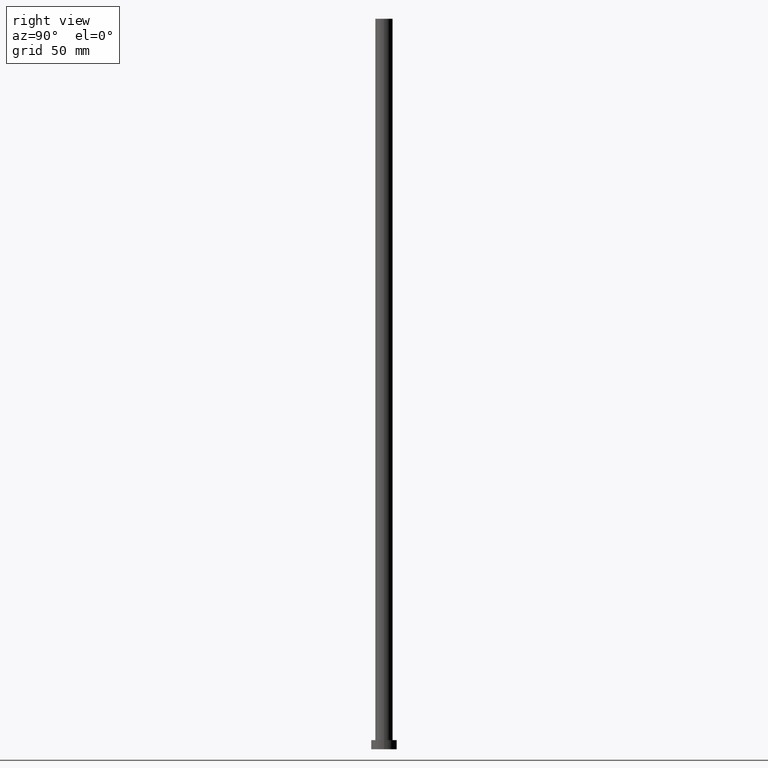
[diagram: clean part render]
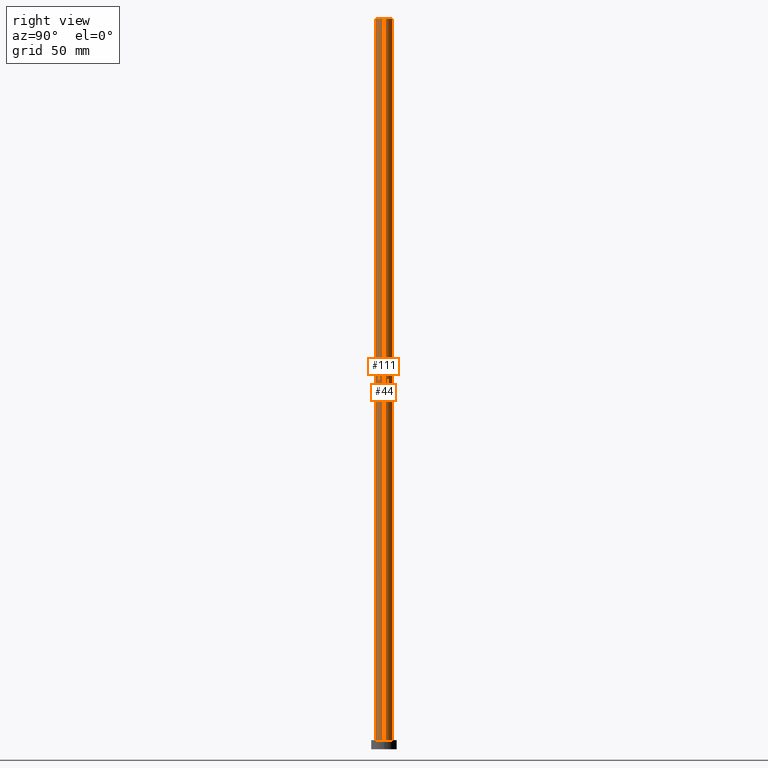
[diagram: same view with one multi-face feature highlighted, each face labeled with its STEP entity id]
A machine part, right view. The highlighted faces form ONE feature: a constant-radius fillet chain: 2 tangent blend faces with common blend radius 4.75 mm. The faces share edges in the B-rep.
Their STEP definitions:
[1] entity #111 (Cylinder):
#4 = AXIS2_PLACEMENT_3D ( 'NONE', #95, #174, #137 ) ;
#17 = DIRECTION ( 'NONE',  ( -0.000000000000000000, -0.000000000000000000, -1.000000000000000000 ) ) ;
#19 = DIRECTION ( 'NONE',  ( -1.000000000000000000, 0.000000000000000000, 0.000000000000000000 ) ) ;
#21 = DIRECTION ( 'NONE',  ( 0.000000000000000000, 0.000000000000000000, 1.000000000000000000 ) ) ;
#31 = AXIS2_PLACEMENT_3D ( 'NONE', #75, #175, #19 ) ;
#36 = VECTOR ( 'NONE', #195, 1000.000000000000000 ) ;
#38 = LINE ( 'NONE', #160, #36 ) ;
#40 = CARTESIAN_POINT ( 'NONE',  ( 0.000000000000000000, 0.000000000000000000, 5.000000000000000000 ) ) ;
#49 = VECTOR ( 'NONE', #17, 1000.000000000000000 ) ;
#57 = FACE_OUTER_BOUND ( 'NONE', #90, .T. ) ;
#62 = CARTESIAN_POINT ( 'NONE',  ( 4.750000000000000888, 5.817072295949927426E-16, 400.0000000000000000 ) ) ;
#64 = CARTESIAN_POINT ( 'NONE',  ( -4.750000000000000888, 0.000000000000000000, 5.000000000000000000 ) ) ;
#65 = ORIENTED_EDGE ( 'NONE', *, *, #167, .F. ) ;
#73 = CARTESIAN_POINT ( 'NONE',  ( 4.750000000000000888, 5.817072295949927426E-16, 5.000000000000000000 ) ) ;
#75 = CARTESIAN_POINT ( 'NONE',  ( 0.000000000000000000, 0.000000000000000000, 400.0000000000000000 ) ) ;
#80 = CIRCLE ( 'NONE', #4, 4.750000000000000888 ) ;
#83 = VERTEX_POINT ( 'NONE', #73 ) ;
#87 = ORIENTED_EDGE ( 'NONE', *, *, #209, .T. ) ;
#90 = EDGE_LOOP ( 'NONE', ( #182, #65, #87, #120 ) ) ;
#95 = CARTESIAN_POINT ( 'NONE',  ( 0.000000000000000000, 0.000000000000000000, 400.0000000000000000 ) ) ;
#102 = VERTEX_POINT ( 'NONE', #64 ) ;
#108 = VERTEX_POINT ( 'NONE', #62 ) ;
#111 = ADVANCED_FACE ( 'NONE', ( #57 ), #193, .T. ) ;
#118 = CARTESIAN_POINT ( 'NONE',  ( -4.750000000000000888, 0.000000000000000000, 400.0000000000000000 ) ) ;
#120 = ORIENTED_EDGE ( 'NONE', *, *, #126, .T. ) ;
#126 = EDGE_CURVE ( 'NONE', #102, #83, #138, .T. ) ;
#137 = DIRECTION ( 'NONE',  ( 1.000000000000000000, 0.000000000000000000, 0.000000000000000000 ) ) ;
#138 = CIRCLE ( 'NONE', #170, 4.750000000000000888 ) ;
#154 = DIRECTION ( 'NONE',  ( 1.000000000000000000, 0.000000000000000000, 0.000000000000000000 ) ) ;
#159 = EDGE_CURVE ( 'NONE', #108, #83, #176, .T. ) ;
#160 = CARTESIAN_POINT ( 'NONE',  ( -4.750000000000000888, 0.000000000000000000, 400.0000000000000000 ) ) ;
#167 = EDGE_CURVE ( 'NONE', #239, #108, #80, .T. ) ;
#170 = AXIS2_PLACEMENT_3D ( 'NONE', #40, #21, #154 ) ;
#174 = DIRECTION ( 'NONE',  ( 0.000000000000000000, 0.000000000000000000, 1.000000000000000000 ) ) ;
#175 = DIRECTION ( 'NONE',  ( -0.000000000000000000, -0.000000000000000000, -1.000000000000000000 ) ) ;
#176 = LINE ( 'NONE', #214, #49 ) ;
#182 = ORIENTED_EDGE ( 'NONE', *, *, #159, .F. ) ;
#193 = CYLINDRICAL_SURFACE ( 'NONE', #31, 4.750000000000000888 ) ;
#195 = DIRECTION ( 'NONE',  ( -0.000000000000000000, -0.000000000000000000, -1.000000000000000000 ) ) ;
#209 = EDGE_CURVE ( 'NONE', #239, #102, #38, .T. ) ;
#214 = CARTESIAN_POINT ( 'NONE',  ( 4.750000000000000888, 5.817072295949927426E-16, 400.0000000000000000 ) ) ;
#239 = VERTEX_POINT ( 'NONE', #118 ) ;
[2] entity #44 (Cylinder):
#15 = DIRECTION ( 'NONE',  ( 1.000000000000000000, 0.000000000000000000, 0.000000000000000000 ) ) ;
#17 = DIRECTION ( 'NONE',  ( -0.000000000000000000, -0.000000000000000000, -1.000000000000000000 ) ) ;
#33 = EDGE_LOOP ( 'NONE', ( #143, #153, #41, #150 ) ) ;
#36 = VECTOR ( 'NONE', #195, 1000.000000000000000 ) ;
#38 = LINE ( 'NONE', #160, #36 ) ;
#41 = ORIENTED_EDGE ( 'NONE', *, *, #248, .T. ) ;
#44 = ADVANCED_FACE ( 'NONE', ( #110 ), #50, .T. ) ;
#49 = VECTOR ( 'NONE', #17, 1000.000000000000000 ) ;
#50 = CYLINDRICAL_SURFACE ( 'NONE', #109, 4.750000000000000888 ) ;
#51 = EDGE_CURVE ( 'NONE', #108, #239, #229, .T. ) ;
#54 = DIRECTION ( 'NONE',  ( -0.000000000000000000, -0.000000000000000000, -1.000000000000000000 ) ) ;
#55 = AXIS2_PLACEMENT_3D ( 'NONE', #81, #142, #74 ) ;
#62 = CARTESIAN_POINT ( 'NONE',  ( 4.750000000000000888, 5.817072295949927426E-16, 400.0000000000000000 ) ) ;
#64 = CARTESIAN_POINT ( 'NONE',  ( -4.750000000000000888, 0.000000000000000000, 5.000000000000000000 ) ) ;
#73 = CARTESIAN_POINT ( 'NONE',  ( 4.750000000000000888, 5.817072295949927426E-16, 5.000000000000000000 ) ) ;
#74 = DIRECTION ( 'NONE',  ( 1.000000000000000000, 0.000000000000000000, 0.000000000000000000 ) ) ;
#81 = CARTESIAN_POINT ( 'NONE',  ( 0.000000000000000000, 0.000000000000000000, 5.000000000000000000 ) ) ;
#83 = VERTEX_POINT ( 'NONE', #73 ) ;
#102 = VERTEX_POINT ( 'NONE', #64 ) ;
#108 = VERTEX_POINT ( 'NONE', #62 ) ;
#109 = AXIS2_PLACEMENT_3D ( 'NONE', #131, #54, #187 ) ;
#110 = FACE_OUTER_BOUND ( 'NONE', #33, .T. ) ;
#117 = AXIS2_PLACEMENT_3D ( 'NONE', #192, #250, #15 ) ;
#118 = CARTESIAN_POINT ( 'NONE',  ( -4.750000000000000888, 0.000000000000000000, 400.0000000000000000 ) ) ;
#131 = CARTESIAN_POINT ( 'NONE',  ( 0.000000000000000000, 0.000000000000000000, 400.0000000000000000 ) ) ;
#142 = DIRECTION ( 'NONE',  ( 0.000000000000000000, 0.000000000000000000, 1.000000000000000000 ) ) ;
#143 = ORIENTED_EDGE ( 'NONE', *, *, #51, .F. ) ;
#150 = ORIENTED_EDGE ( 'NONE', *, *, #209, .F. ) ;
#153 = ORIENTED_EDGE ( 'NONE', *, *, #159, .T. ) ;
#159 = EDGE_CURVE ( 'NONE', #108, #83, #176, .T. ) ;
#160 = CARTESIAN_POINT ( 'NONE',  ( -4.750000000000000888, 0.000000000000000000, 400.0000000000000000 ) ) ;
#176 = LINE ( 'NONE', #214, #49 ) ;
#187 = DIRECTION ( 'NONE',  ( -1.000000000000000000, 0.000000000000000000, 0.000000000000000000 ) ) ;
#192 = CARTESIAN_POINT ( 'NONE',  ( 0.000000000000000000, 0.000000000000000000, 400.0000000000000000 ) ) ;
#195 = DIRECTION ( 'NONE',  ( -0.000000000000000000, -0.000000000000000000, -1.000000000000000000 ) ) ;
#209 = EDGE_CURVE ( 'NONE', #239, #102, #38, .T. ) ;
#214 = CARTESIAN_POINT ( 'NONE',  ( 4.750000000000000888, 5.817072295949927426E-16, 400.0000000000000000 ) ) ;
#229 = CIRCLE ( 'NONE', #117, 4.750000000000000888 ) ;
#239 = VERTEX_POINT ( 'NONE', #118 ) ;
#248 = EDGE_CURVE ( 'NONE', #83, #102, #253, .T. ) ;
#250 = DIRECTION ( 'NONE',  ( 0.000000000000000000, 0.000000000000000000, 1.000000000000000000 ) ) ;
#253 = CIRCLE ( 'NONE', #55, 4.750000000000000888 ) ;